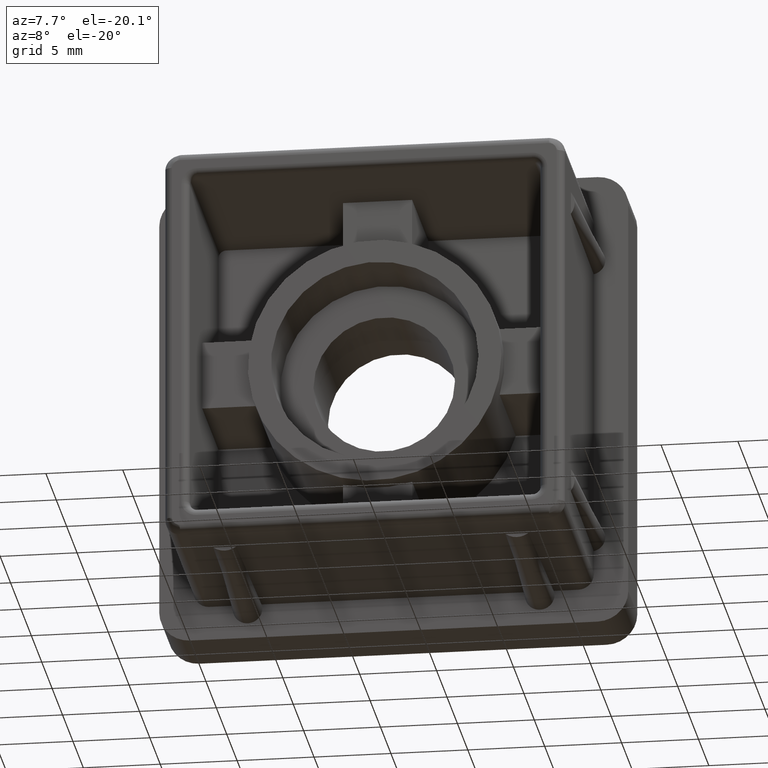
[diagram: clean part render]
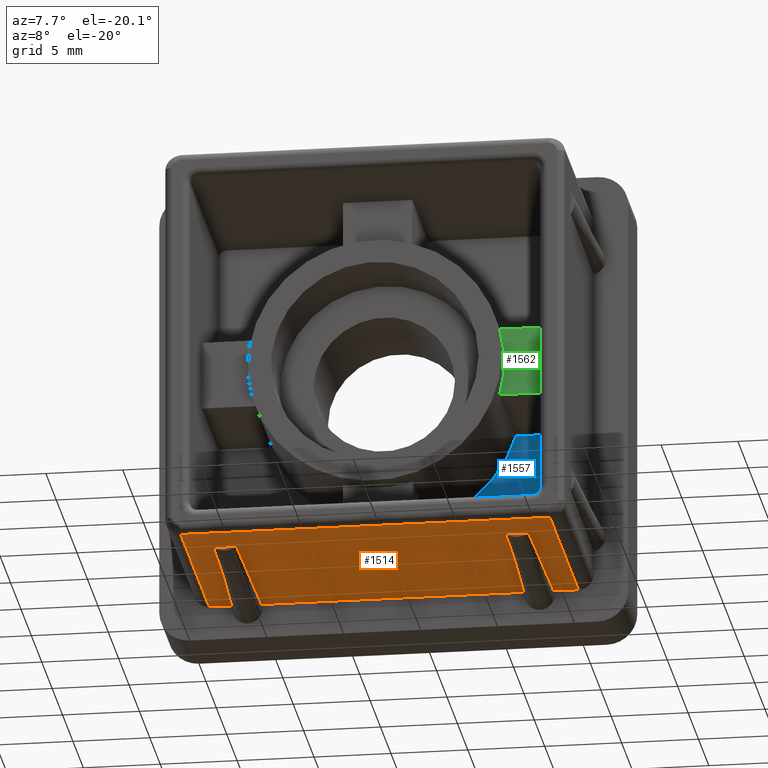
[diagram: same view with three faces highlighted in distinct colors, each labeled with its STEP entity id]
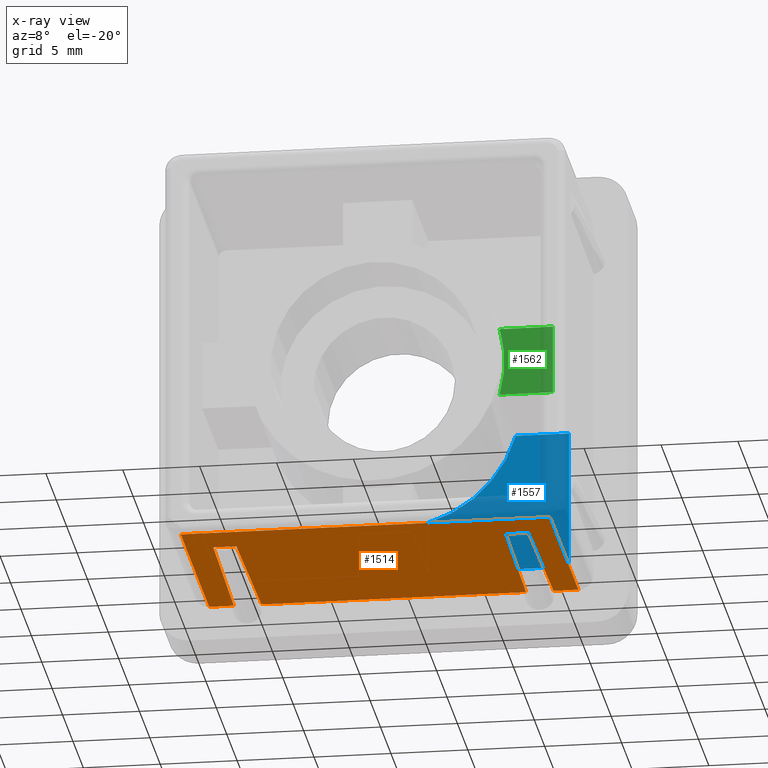
[diagram: x-ray of the same camera — body ghosted, the three highlighted faces saturated]
A machine part, auxiliary view with three faces highlighted in distinct colors.
The next image is the same camera in x-ray (body ghosted, the three faces saturated) — at least one of them is partly hidden behind the body in this view.
Their STEP definitions:

[orange] entity #1514 — the highlighted planar face has unit normal (0, 0, -1).
#59=PLANE('',#1645);
#95=LINE('',#2240,#227);
#165=LINE('',#2458,#297);
#166=LINE('',#2463,#298);
#167=LINE('',#2466,#299);
#168=LINE('',#2468,#300);
#169=LINE('',#2470,#301);
#170=LINE('',#2472,#302);
#171=LINE('',#2474,#303);
#172=LINE('',#2476,#304);
#173=LINE('',#2478,#305);
#174=LINE('',#2480,#306);
#175=LINE('',#2481,#307);
#227=VECTOR('',#1764,24.);
#297=VECTOR('',#1946,13.7);
#298=VECTOR('',#1953,13.7);
#299=VECTOR('',#1956,1.6);
#300=VECTOR('',#1957,11.001022679733);
#301=VECTOR('',#1958,1.5);
#302=VECTOR('',#1959,11.001022679733);
#303=VECTOR('',#1960,17.2);
#304=VECTOR('',#1961,11.001022679733);
#305=VECTOR('',#1962,1.5);
#306=VECTOR('',#1963,11.001022679733);
#307=VECTOR('',#1964,1.6);
#417=FACE_OUTER_BOUND('',#509,.T.);
#509=EDGE_LOOP('',(#1206,#1207,#1208,#1209,#1210,#1211,#1212,#1213,#1214,
#1215,#1216,#1217));
#669=VERTEX_POINT('',#2232);
#671=VERTEX_POINT('',#2238);
#745=VERTEX_POINT('',#2457);
#746=VERTEX_POINT('',#2461);
#747=VERTEX_POINT('',#2465);
#748=VERTEX_POINT('',#2467);
#749=VERTEX_POINT('',#2469);
#750=VERTEX_POINT('',#2471);
#751=VERTEX_POINT('',#2473);
#752=VERTEX_POINT('',#2475);
#753=VERTEX_POINT('',#2477);
#754=VERTEX_POINT('',#2479);
#817=EDGE_CURVE('',#671,#669,#95,.T.);
#918=EDGE_CURVE('',#669,#745,#165,.T.);
#921=EDGE_CURVE('',#746,#671,#166,.T.);
#922=EDGE_CURVE('',#746,#747,#167,.T.);
#923=EDGE_CURVE('',#747,#748,#168,.T.);
#924=EDGE_CURVE('',#748,#749,#169,.T.);
#925=EDGE_CURVE('',#749,#750,#170,.T.);
#926=EDGE_CURVE('',#750,#751,#171,.T.);
#927=EDGE_CURVE('',#751,#752,#172,.T.);
#928=EDGE_CURVE('',#752,#753,#173,.T.);
#929=EDGE_CURVE('',#753,#754,#174,.T.);
#930=EDGE_CURVE('',#754,#745,#175,.T.);
#1206=ORIENTED_EDGE('',*,*,#817,.F.);
#1207=ORIENTED_EDGE('',*,*,#921,.F.);
#1208=ORIENTED_EDGE('',*,*,#922,.T.);
#1209=ORIENTED_EDGE('',*,*,#923,.T.);
#1210=ORIENTED_EDGE('',*,*,#924,.T.);
#1211=ORIENTED_EDGE('',*,*,#925,.T.);
#1212=ORIENTED_EDGE('',*,*,#926,.T.);
#1213=ORIENTED_EDGE('',*,*,#927,.T.);
#1214=ORIENTED_EDGE('',*,*,#928,.T.);
#1215=ORIENTED_EDGE('',*,*,#929,.T.);
#1216=ORIENTED_EDGE('',*,*,#930,.T.);
#1217=ORIENTED_EDGE('',*,*,#918,.F.);
#1514=ADVANCED_FACE('',(#417),#59,.T.);
#1645=AXIS2_PLACEMENT_3D('',#2464,#1954,#1955);
#1764=DIRECTION('',(1.,0.,0.));
#1946=DIRECTION('',(0.,1.,0.));
#1953=DIRECTION('',(3.127388801761E-16,-1.,0.));
#1954=DIRECTION('center_axis',(0.,0.,-1.));
#1955=DIRECTION('ref_axis',(-1.,0.,0.));
#1956=DIRECTION('',(1.,0.,0.));
#1957=DIRECTION('',(0.0136350959694273,-0.999907037757963,0.));
#1958=DIRECTION('',(1.,7.84150510936615E-31,0.));
#1959=DIRECTION('',(0.0136350959694264,0.999907037757963,0.));
#1960=DIRECTION('',(1.,0.,0.));
#1961=DIRECTION('',(0.0136350959694269,-0.999907037757963,-2.0183996650975E-16));
#1962=DIRECTION('',(1.,1.50556898099842E-29,0.));
#1963=DIRECTION('',(0.0136350959694265,0.999907037757963,-2.0183996650975E-16));
#1964=DIRECTION('',(1.,0.,0.));
#2232=CARTESIAN_POINT('',(25.,0.5,-13.));
#2238=CARTESIAN_POINT('',(1.,0.5,-13.));
#2240=CARTESIAN_POINT('',(6.5,0.5,-13.));
#2457=CARTESIAN_POINT('',(25.,14.2,-13.));
#2458=CARTESIAN_POINT('',(25.,3.55,-13.));
#2461=CARTESIAN_POINT('',(0.999999999999996,14.2,-13.));
#2463=CARTESIAN_POINT('',(0.999999999999996,10.65,-13.));
#2464=CARTESIAN_POINT('Origin',(13.,7.1,-13.));
#2465=CARTESIAN_POINT('',(2.59999999999999,14.2,-13.));
#2466=CARTESIAN_POINT('',(26.,14.2,-13.));
#2467=CARTESIAN_POINT('',(2.75,3.2,-13.));
#2468=CARTESIAN_POINT('',(2.59999999999999,14.2,-13.));
#2469=CARTESIAN_POINT('',(4.25,3.2,-13.));
#2470=CARTESIAN_POINT('',(8.25,3.2,-13.));
#2471=CARTESIAN_POINT('',(4.4,14.2,-13.));
#2472=CARTESIAN_POINT('',(4.4,14.2,-13.));
#2473=CARTESIAN_POINT('',(21.6,14.2,-13.));
#2474=CARTESIAN_POINT('',(26.,14.2,-13.));
#2475=CARTESIAN_POINT('',(21.75,3.2,-13.));
#2476=CARTESIAN_POINT('',(21.6,14.2,-13.));
#2477=CARTESIAN_POINT('',(23.25,3.2,-13.));
#2478=CARTESIAN_POINT('',(17.75,3.2,-13.));
#2479=CARTESIAN_POINT('',(23.4,14.2,-13.));
#2480=CARTESIAN_POINT('',(23.4,14.2,-13.));
#2481=CARTESIAN_POINT('',(26.,14.2,-13.));

[blue] entity #1557 — the highlighted planar face has unit normal (0, 1, 0).
#82=PLANE('',#1712);
#199=LINE('',#2949,#331);
#214=LINE('',#2986,#346);
#215=LINE('',#2988,#347);
#216=LINE('',#2990,#348);
#331=VECTOR('',#2098,3.46274606680623);
#346=VECTOR('',#2137,8.65000000000001);
#347=VECTOR('',#2138,3.46274606680624);
#348=VECTOR('',#2141,8.65000000000001);
#460=FACE_OUTER_BOUND('',#554,.T.);
#554=EDGE_LOOP('',(#1403,#1404,#1405,#1406,#1407,#1408));
#613=CIRCLE('',#1627,0.5);
#652=CIRCLE('',#1713,8.25);
#717=VERTEX_POINT('',#2381);
#718=VERTEX_POINT('',#2382);
#781=VERTEX_POINT('',#2943);
#783=VERTEX_POINT('',#2947);
#793=VERTEX_POINT('',#2985);
#794=VERTEX_POINT('',#2987);
#880=EDGE_CURVE('',#717,#718,#613,.T.);
#991=EDGE_CURVE('',#781,#783,#199,.T.);
#1009=EDGE_CURVE('',#793,#718,#214,.T.);
#1010=EDGE_CURVE('',#793,#794,#215,.T.);
#1011=EDGE_CURVE('',#794,#781,#652,.T.);
#1012=EDGE_CURVE('',#717,#783,#216,.T.);
#1403=ORIENTED_EDGE('',*,*,#880,.T.);
#1404=ORIENTED_EDGE('',*,*,#1009,.F.);
#1405=ORIENTED_EDGE('',*,*,#1010,.T.);
#1406=ORIENTED_EDGE('',*,*,#1011,.T.);
#1407=ORIENTED_EDGE('',*,*,#991,.T.);
#1408=ORIENTED_EDGE('',*,*,#1012,.F.);
#1557=ADVANCED_FACE('',(#460),#82,.F.);
#1627=AXIS2_PLACEMENT_3D('',#2383,#1883,#1884);
#1712=AXIS2_PLACEMENT_3D('',#2984,#2135,#2136);
#1713=AXIS2_PLACEMENT_3D('',#2989,#2139,#2140);
#1883=DIRECTION('center_axis',(0.,-1.,0.));
#1884=DIRECTION('ref_axis',(0.707106781186548,0.,-0.707106781186548));
#2098=DIRECTION('',(-1.83697019872103E-16,0.,-1.));
#2135=DIRECTION('center_axis',(0.,1.,0.));
#2136=DIRECTION('ref_axis',(0.,0.,1.));
#2137=DIRECTION('',(1.94775969232484E-16,0.,-1.));
#2138=DIRECTION('',(-1.,0.,-5.55111512312578E-16));
#2139=DIRECTION('center_axis',(0.,1.,0.));
#2140=DIRECTION('ref_axis',(-1.,0.,0.));
#2141=DIRECTION('',(-1.,0.,0.));
#2381=CARTESIAN_POINT('',(23.9,14.2,-11.4));
#2382=CARTESIAN_POINT('',(24.4,14.2,-10.9));
#2383=CARTESIAN_POINT('Origin',(23.9,14.2,-10.9));
#2943=CARTESIAN_POINT('',(15.25,14.2,-7.93725393319377));
#2947=CARTESIAN_POINT('',(15.25,14.2,-11.4));
#2949=CARTESIAN_POINT('',(15.25,14.2,-5.7));
#2984=CARTESIAN_POINT('Origin',(13.,14.2,2.22044604925031E-15));
#2985=CARTESIAN_POINT('',(24.4,14.2,-2.24999999999999));
#2986=CARTESIAN_POINT('',(24.4,14.2,-11.4));
#2987=CARTESIAN_POINT('',(20.9372539331938,14.2,-2.24999999999999));
#2988=CARTESIAN_POINT('',(16.7,14.2,-2.25));
#2989=CARTESIAN_POINT('Origin',(13.,14.2,6.66133814775094E-15));
#2990=CARTESIAN_POINT('',(1.6,14.2,-11.4));

[green] entity #1562 — the highlighted planar face has unit normal (0, -1, 0).
#86=PLANE('',#1721);
#220=LINE('',#3004,#352);
#223=LINE('',#3009,#355);
#224=LINE('',#3011,#356);
#352=VECTOR('',#2157,3.46274606680623);
#355=VECTOR('',#2162,3.46274606680624);
#356=VECTOR('',#2165,4.5);
#465=FACE_OUTER_BOUND('',#560,.T.);
#560=EDGE_LOOP('',(#1440,#1441,#1442,#1443));
#655=CIRCLE('',#1718,8.25);
#796=VERTEX_POINT('',#2997);
#797=VERTEX_POINT('',#2999);
#798=VERTEX_POINT('',#3003);
#799=VERTEX_POINT('',#3007);
#1017=EDGE_CURVE('',#796,#797,#655,.T.);
#1019=EDGE_CURVE('',#798,#797,#220,.T.);
#1022=EDGE_CURVE('',#796,#799,#223,.T.);
#1023=EDGE_CURVE('',#798,#799,#224,.T.);
#1440=ORIENTED_EDGE('',*,*,#1017,.F.);
#1441=ORIENTED_EDGE('',*,*,#1022,.T.);
#1442=ORIENTED_EDGE('',*,*,#1023,.F.);
#1443=ORIENTED_EDGE('',*,*,#1019,.T.);
#1562=ADVANCED_FACE('',(#465),#86,.T.);
#1718=AXIS2_PLACEMENT_3D('',#3000,#2152,#2153);
#1721=AXIS2_PLACEMENT_3D('',#3010,#2163,#2164);
#2152=DIRECTION('center_axis',(0.,-1.,0.));
#2153=DIRECTION('ref_axis',(-1.,0.,0.));
#2157=DIRECTION('',(-1.,0.,0.));
#2162=DIRECTION('',(1.,0.,5.55111512312578E-16));
#2163=DIRECTION('center_axis',(0.,-1.,0.));
#2164=DIRECTION('ref_axis',(0.,0.,-1.));
#2165=DIRECTION('',(1.94775969232484E-16,0.,-1.));
#2997=CARTESIAN_POINT('',(20.9372539331938,6.4,-2.24999999999999));
#2999=CARTESIAN_POINT('',(20.9372539331938,6.4,2.25000000000001));
#3000=CARTESIAN_POINT('Origin',(13.,6.4,6.66133814775094E-15));
#3003=CARTESIAN_POINT('',(24.4,6.4,2.25000000000001));
#3004=CARTESIAN_POINT('',(24.4,6.4,2.25000000000001));
#3007=CARTESIAN_POINT('',(24.4,6.4,-2.24999999999999));
#3009=CARTESIAN_POINT('',(20.4,6.4,-2.24999999999999));
#3010=CARTESIAN_POINT('Origin',(22.4,6.4,6.10622663543836E-15));
#3011=CARTESIAN_POINT('',(24.4,6.4,5.7));